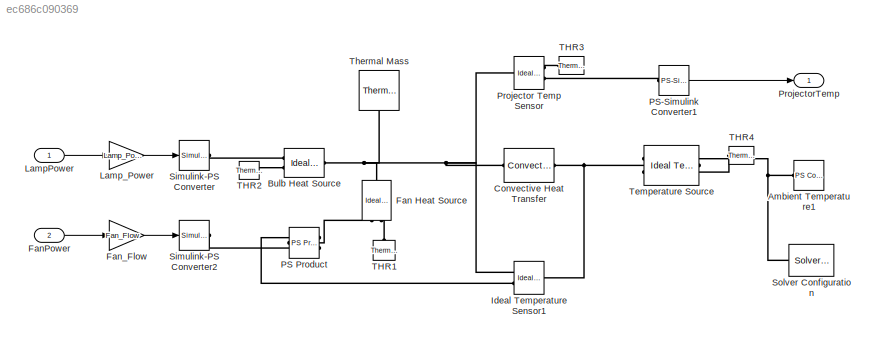
MODEL slx_ec686c090369
KIND model
CONFIG AbsTol = auto
CONFIG FixedStep = auto
CONFIG MaxStep = auto
CONFIG MinStep = auto
CONFIG PreLoadFcn = Simscape_Thermal_Projector_Parameters;
CONFIG RelTol = 1e-3
CONFIG SampleTimeConstraint = Unconstrained
CONFIG Solver = ode15s
CONFIG SolverMode = Auto
CONFIG SolverName = ode15s
CONFIG StartTime = 0.0
CONFIG StopTime = 200
BLOCK [Reference] Ambient Temperature1  REF=fl_lib/Physical Signals/Sources/PS Constant
  Ports = [0, 0, 0, 0, 0, 0, 1]
  SourceBlock = fl_lib/Physical Signals/Sources/PS Constant
  SourceType = PS Constant
BLOCK [Reference] Bulb Heat Source  REF=fl_lib/Thermal/Thermal Sources/Ideal Heat Flow
Source
  Ports = [0, 0, 0, 0, 0, 1, 2]
  SourceBlock = fl_lib/Thermal/Thermal Sources/Ideal Heat Flow\nSource
  SourceType = Ideal Heat Flow\nSource
BLOCK [Reference] Convective Heat Transfer  REF=fl_lib/Thermal/Thermal Elements/Convective Heat
Transfer
  Ports = [0, 0, 0, 0, 0, 1, 1]
  SourceBlock = fl_lib/Thermal/Thermal Elements/Convective Heat\nTransfer
  SourceType = Convective Heat\nTransfer
BLOCK [Reference] Fan Heat Source  REF=fl_lib/Thermal/Thermal Sources/Ideal Heat Flow
Source
  Ports = [0, 0, 0, 0, 0, 1, 2]
  SourceBlock = fl_lib/Thermal/Thermal Sources/Ideal Heat Flow\nSource
  SourceType = Ideal Heat Flow\nSource
BLOCK [Inport] FanPower
  IconDisplay = Port number
  Port = 2
BLOCK [Gain] Fan_Flow
  Gain = Fan_Flow
  OutDataTypeStr = Inherit: Inherit via internal rule
  ParamDataTypeStr = Inherit: Inherit via internal rule
  SaturateOnIntegerOverflow = off
BLOCK [Reference] Ideal Temperature Sensor1  REF=fl_lib/Thermal/Thermal Sensors/Ideal Temperature
Sensor
  Ports = [0, 0, 0, 0, 0, 1, 2]
  SourceBlock = fl_lib/Thermal/Thermal Sensors/Ideal Temperature\nSensor
  SourceType = Ideal Temperature\nSensor
BLOCK [Inport] LampPower
  IconDisplay = Port number
BLOCK [Gain] Lamp_Power
  Gain = Lamp_Power
  OutDataTypeStr = Inherit: Inherit via internal rule
  ParamDataTypeStr = Inherit: Inherit via internal rule
  SaturateOnIntegerOverflow = off
BLOCK [Reference] PS Product  REF=fl_lib/Physical Signals/Functions/PS Product
  Ports = [0, 0, 0, 0, 0, 2, 1]
  SourceBlock = fl_lib/Physical Signals/Functions/PS Product
  SourceType = PS Product
BLOCK [Reference] PS-Simulink Converter1  REF=nesl_utility/PS-Simulink
Converter
  Ports = [0, 1, 0, 0, 0, 1]
  SourceBlock = nesl_utility/PS-Simulink\nConverter
  SourceType = PS-Simulink\nConverter
BLOCK [Reference] Projector Temp Sensor  REF=fl_lib/Thermal/Thermal Sensors/Ideal Temperature
Sensor
  Ports = [0, 0, 0, 0, 0, 1, 2]
  SourceBlock = fl_lib/Thermal/Thermal Sensors/Ideal Temperature\nSensor
  SourceType = Ideal Temperature\nSensor
BLOCK [Outport] ProjectorTemp
  IconDisplay = Port number
BLOCK [Reference] Simulink-PS Converter  REF=nesl_utility/Simulink-PS
Converter
  Ports = [1, 0, 0, 0, 0, 0, 1]
  SourceBlock = nesl_utility/Simulink-PS\nConverter
  SourceType = Simulink-PS\nConverter
BLOCK [Reference] Simulink-PS Converter2  REF=nesl_utility/Simulink-PS
Converter
  Ports = [1, 0, 0, 0, 0, 0, 1]
  SourceBlock = nesl_utility/Simulink-PS\nConverter
  SourceType = Simulink-PS\nConverter
BLOCK [Reference] Solver Configuration  REF=nesl_utility/Solver
Configuration
  Ports = [0, 0, 0, 0, 0, 0, 1]
  SourceBlock = nesl_utility/Solver\nConfiguration
  SourceType = Solver\nConfiguration
BLOCK [Reference] THR1  REF=fl_lib/Thermal/Thermal Elements/Thermal Reference
  Ports = [0, 0, 0, 0, 0, 1]
  SourceBlock = fl_lib/Thermal/Thermal Elements/Thermal Reference
  SourceType = Thermal Reference
BLOCK [Reference] THR2  REF=fl_lib/Thermal/Thermal Elements/Thermal Reference
  Ports = [0, 0, 0, 0, 0, 1]
  SourceBlock = fl_lib/Thermal/Thermal Elements/Thermal Reference
  SourceType = Thermal Reference
BLOCK [Reference] THR3  REF=fl_lib/Thermal/Thermal Elements/Thermal Reference
  Ports = [0, 0, 0, 0, 0, 1]
  SourceBlock = fl_lib/Thermal/Thermal Elements/Thermal Reference
  SourceType = Thermal Reference
BLOCK [Reference] THR4  REF=fl_lib/Thermal/Thermal Elements/Thermal Reference
  Ports = [0, 0, 0, 0, 0, 1]
  SourceBlock = fl_lib/Thermal/Thermal Elements/Thermal Reference
  SourceType = Thermal Reference
BLOCK [Reference] Temperature Source  REF=fl_lib/Thermal/Thermal Sources/Ideal Temperature
Source
  Ports = [0, 0, 0, 0, 0, 1, 2]
  SourceBlock = fl_lib/Thermal/Thermal Sources/Ideal Temperature\nSource
  SourceType = Ideal Temperature\nSource
BLOCK [Reference] Thermal Mass  REF=fl_lib/Thermal/Thermal Elements/Thermal Mass
  Ports = [0, 0, 0, 0, 0, 1]
  SourceBlock = fl_lib/Thermal/Thermal Elements/Thermal Mass
  SourceType = Thermal Mass
LINE FanPower:1 -> Fan_Flow:1
LINE Fan_Flow:1 -> Simulink-PS Converter2:1
LINE LampPower:1 -> Lamp_Power:1
LINE Lamp_Power:1 -> Simulink-PS Converter:1
LINE PS-Simulink Converter1:1 -> ProjectorTemp:1
PNET net1: Ambient Temperature1:RConn1 -- Solver Configuration:RConn1 -- Temperature Source:RConn1
PNET net2: Bulb Heat Source:LConn1 -- Convective Heat Transfer:LConn1 -- Fan Heat Source:LConn1 -- Ideal Temperature Sensor1:RConn1 -- Projector Temp Sensor:LConn1 -- Thermal Mass:LConn1
PLINE Bulb Heat Source:RConn1 -- Simulink-PS Converter:RConn1
PLINE Bulb Heat Source:RConn2 -- THR2:LConn1
PNET net3: Convective Heat Transfer:RConn1 -- Ideal Temperature Sensor1:LConn1 -- Temperature Source:LConn1
PLINE Fan Heat Source:RConn1 -- PS Product:RConn1
PLINE Fan Heat Source:RConn2 -- THR1:LConn1
PLINE Ideal Temperature Sensor1:RConn2 -- PS Product:LConn1
PLINE PS Product:LConn2 -- Simulink-PS Converter2:RConn1
PLINE PS-Simulink Converter1:LConn1 -- Projector Temp Sensor:RConn2
PLINE Projector Temp Sensor:RConn1 -- THR3:LConn1
PLINE THR4:LConn1 -- Temperature Source:RConn2
note: PNET lines group multi-terminal physical nets as a canonical sorted terminal list (undirected conserving connections); 2-terminal nets keep the pairwise PLINE form
CHART Test Sequence states=4 transitions=4
  STATE_LABEL 'InitializeSysToAmbient\nLampPower = 0;\nFanPower = 1;\nT0out = latch(ProjectorTemp);\n\n% latch captures the temp at the\n% start of the step'
  STATE_LABEL 'SystemHeatingTest\nFanPower = latch(FanPower);\nLampPower = 1;\nT0out = latch(ProjectorTemp);\nPowerOnTime = latch(t);'
  STATE_LABEL 'SystemCoolingTest\nFanPower = latch(FanPower);\nLampPower = 0;\nT0out = latch(ProjectorTemp);'
  STATE_LABEL 'Stop\nLampPower = 0;\nFanPower = 0;'
